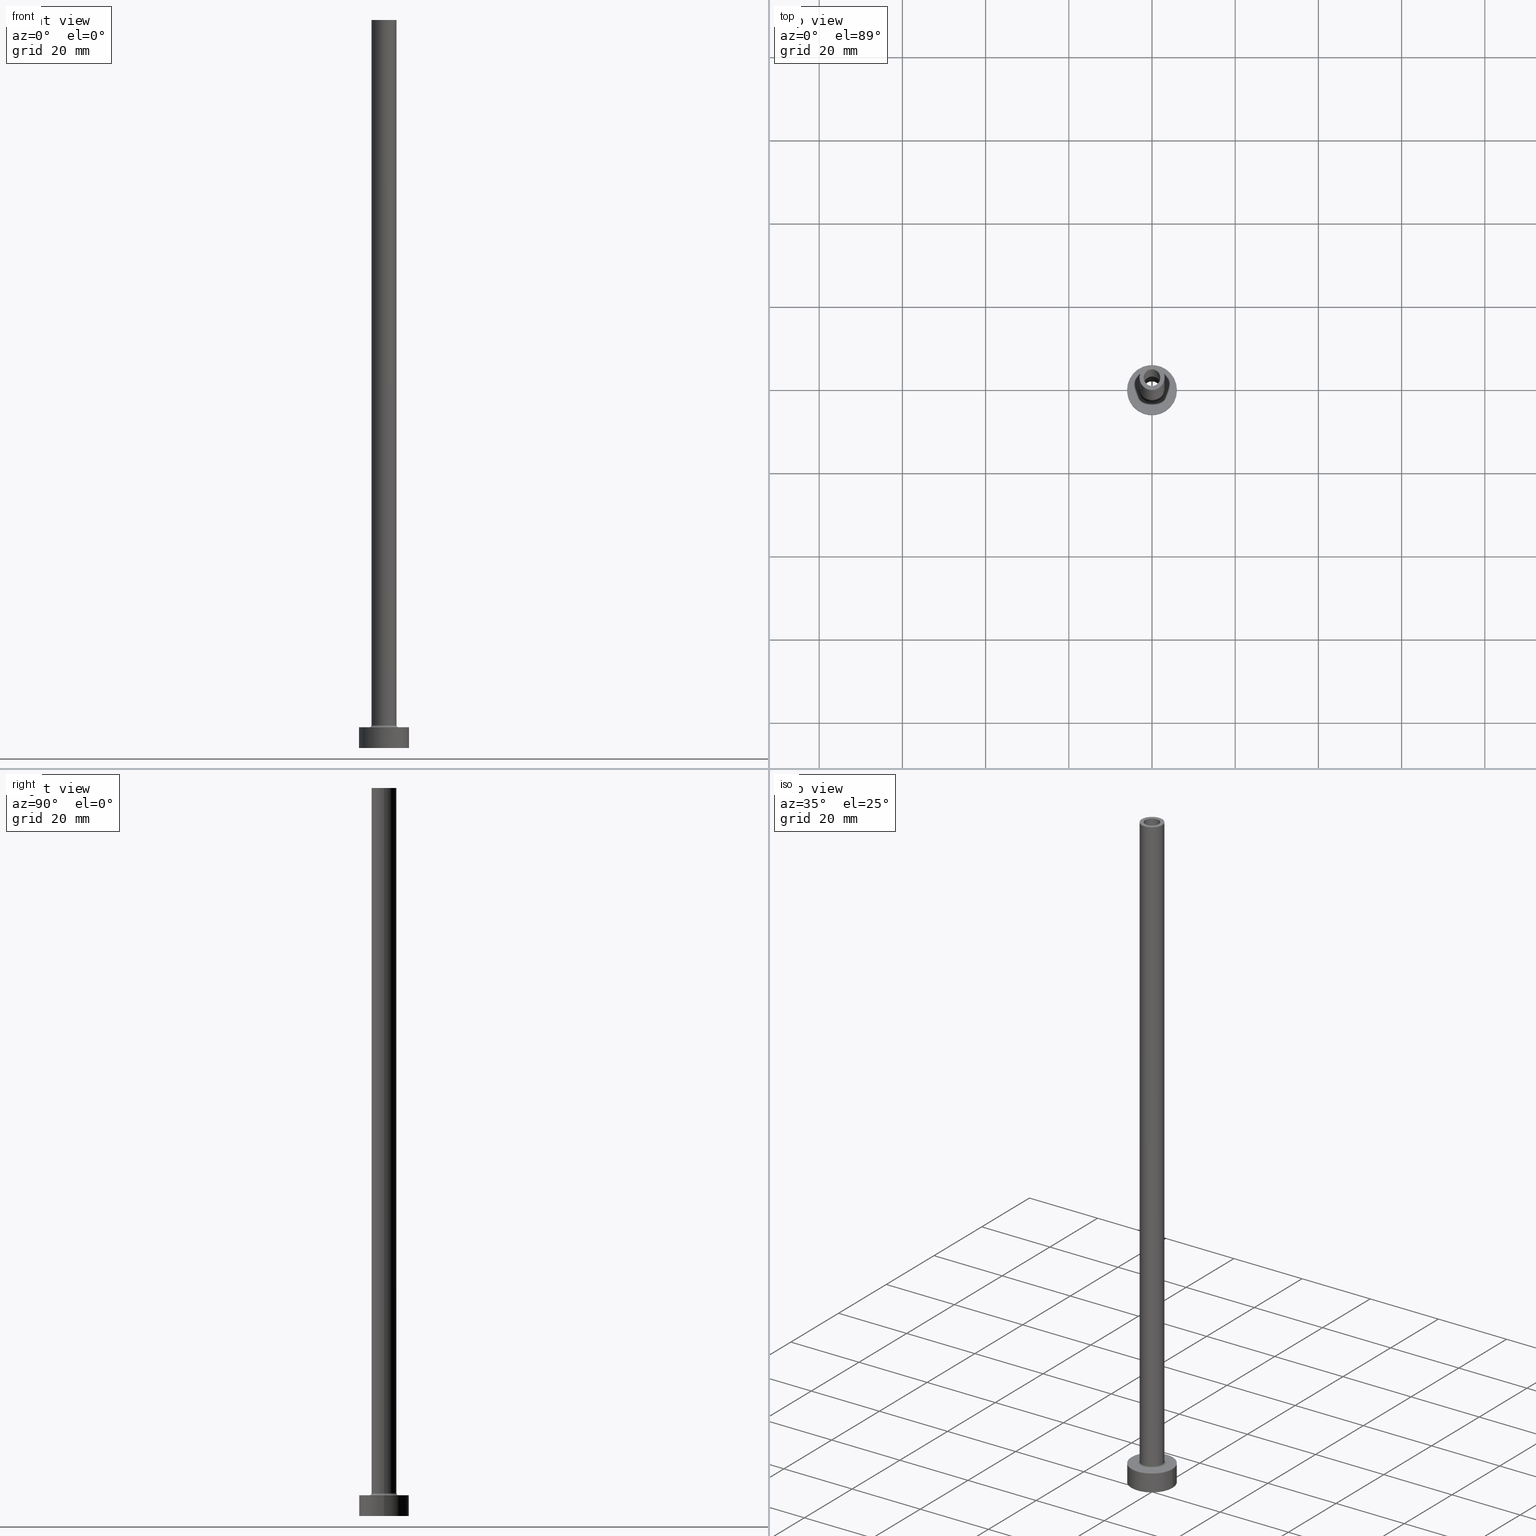
[diagram: canonical four-view strip — front | top / right | iso, engineering-drawing reading convention]
A machine part, canonical four-view strip (front | top / right | iso — engineering-drawing reading convention). The complete STEP part file that produces these views, byte-faithful:
ISO-10303-21;
HEADER;
FILE_DESCRIPTION (( 'STEP AP203' ),
    '1' );
FILE_NAME ('c520.STEP',
    '2023-02-13T11:08:52',
    ( '' ),
    ( '' ),
    'SwSTEP 2.0',
    'SolidWorks 2019',
    '' );
FILE_SCHEMA (( 'CONFIG_CONTROL_DESIGN' ));
ENDSEC;

DATA;
#1 = DIRECTION ( 'NONE',  ( 0.000000000000000000, 0.000000000000000000, 1.000000000000000000 ) ) ;
#2 = AXIS2_PLACEMENT_3D ( 'NONE', #151, #404, #79 ) ;
#3 = AXIS2_PLACEMENT_3D ( 'NONE', #165, #229, #452 ) ;
#4 = CC_DESIGN_PERSON_AND_ORGANIZATION_ASSIGNMENT ( #111, #215, ( #196 ) ) ;
#5 = APPLICATION_PROTOCOL_DEFINITION ( 'international standard', 'config_control_design', 1994, #100 ) ;
#6 = CIRCLE ( 'NONE', #447, 6.000000000000000888 ) ;
#7 = CARTESIAN_POINT ( 'NONE',  ( -3.000000000000000444, 0.000000000000000000, 5.500000000000005329 ) ) ;
#8 = DIRECTION ( 'NONE',  ( 1.000000000000000000, 0.000000000000000000, 0.000000000000000000 ) ) ;
#9 = CARTESIAN_POINT ( 'NONE',  ( 0.000000000000000000, 0.000000000000000000, 5.000000000000000000 ) ) ;
#10 = AXIS2_PLACEMENT_3D ( 'NONE', #263, #193, #195 ) ;
#11 = PRODUCT ( 'c520', 'c520', '', ( #376 ) ) ;
#12 = DIRECTION ( 'NONE',  ( -0.000000000000000000, -0.000000000000000000, -1.000000000000000000 ) ) ;
#13 = ORIENTED_EDGE ( 'NONE', *, *, #245, .F. ) ;
#14 = DIRECTION ( 'NONE',  ( 0.000000000000000000, 0.000000000000000000, 1.000000000000000000 ) ) ;
#15 = CARTESIAN_POINT ( 'NONE',  ( 6.000000000000000888, 7.347880794884120722E-16, 5.000000000000000000 ) ) ;
#16 = CC_DESIGN_APPROVAL ( #311, ( #146 ) ) ;
#17 = CARTESIAN_POINT ( 'NONE',  ( 0.000000000000000000, 0.000000000000000000, 5.000000000000000000 ) ) ;
#18 = ORIENTED_EDGE ( 'NONE', *, *, #432, .F. ) ;
#19 = DIRECTION ( 'NONE',  ( -0.000000000000000000, -0.000000000000000000, -1.000000000000000000 ) ) ;
#20 = ADVANCED_FACE ( 'NONE', ( #80 ), #217, .T. ) ;
#21 = DIRECTION ( 'NONE',  ( 1.000000000000000000, 0.000000000000000000, 0.000000000000000000 ) ) ;
#22 = ORIENTED_EDGE ( 'NONE', *, *, #364, .F. ) ;
#23 = CARTESIAN_POINT ( 'NONE',  ( -2.149999999999999911, 0.000000000000000000, 136.0811183182042896 ) ) ;
#24 = CARTESIAN_POINT ( 'NONE',  ( -2.000000000000000000, 0.000000000000000000, 130.0000000000000000 ) ) ;
#25 = AXIS2_PLACEMENT_3D ( 'NONE', #408, #12, #251 ) ;
#26 = VECTOR ( 'NONE', #422, 1000.000000000000000 ) ;
#27 = CYLINDRICAL_SURFACE ( 'NONE', #221, 6.000000000000000888 ) ;
#28 = EDGE_LOOP ( 'NONE', ( #190, #272 ) ) ;
#29 = DIRECTION ( 'NONE',  ( 0.000000000000000000, 0.000000000000000000, 1.000000000000000000 ) ) ;
#30 = AXIS2_PLACEMENT_3D ( 'NONE', #92, #378, #90 ) ;
#31 = ORIENTED_EDGE ( 'NONE', *, *, #407, .F. ) ;
#32 = DIRECTION ( 'NONE',  ( 1.000000000000000000, 0.000000000000000000, 0.000000000000000000 ) ) ;
#33 = PLANE ( 'NONE',  #373 ) ;
#34 = APPROVAL ( #210, 'NEUR�EN�' ) ;
#35 = AXIS2_PLACEMENT_3D ( 'NONE', #58, #304, #158 ) ;
#36 = DATE_AND_TIME ( #248, #205 ) ;
#37 = CARTESIAN_POINT ( 'NONE',  ( 2.149999999999999911, 2.632990618166809235E-16, 0.000000000000000000 ) ) ;
#38 = ORIENTED_EDGE ( 'NONE', *, *, #209, .F. ) ;
#39 = PERSON_AND_ORGANIZATION ( #361, #288 ) ;
#40 = ORIENTED_EDGE ( 'NONE', *, *, #218, .F. ) ;
#41 = DATE_TIME_ROLE ( 'classification_date' ) ;
#42 = CIRCLE ( 'NONE', #102, 2.000000000000000000 ) ;
#43 = CIRCLE ( 'NONE', #30, 3.500000000000000444 ) ;
#44 = DIRECTION ( 'NONE',  ( 1.000000000000000000, 0.000000000000000000, 0.000000000000000000 ) ) ;
#45 = EDGE_CURVE ( 'NONE', #380, #344, #342, .T. ) ;
#46 = VERTEX_POINT ( 'NONE', #117 ) ;
#47 = AXIS2_PLACEMENT_3D ( 'NONE', #414, #403, #8 ) ;
#48 = EDGE_CURVE ( 'NONE', #276, #244, #256, .T. ) ;
#49 = ORIENTED_EDGE ( 'NONE', *, *, #218, .T. ) ;
#50 = EDGE_LOOP ( 'NONE', ( #339, #49 ) ) ;
#51 = APPROVAL_ROLE ( '' ) ;
#52 = VERTEX_POINT ( 'NONE', #300 ) ;
#53 = LINE ( 'NONE', #128, #400 ) ;
#54 = APPROVAL_PERSON_ORGANIZATION ( #143, #203, #51 ) ;
#55 = ORIENTED_EDGE ( 'NONE', *, *, #325, .F. ) ;
#56 = DIRECTION ( 'NONE',  ( 0.000000000000000000, 0.000000000000000000, 1.000000000000000000 ) ) ;
#57 = EDGE_LOOP ( 'NONE', ( #303, #132 ) ) ;
#58 = CARTESIAN_POINT ( 'NONE',  ( 3.500000000000000444, 0.000000000000000000, 5.500000000000005329 ) ) ;
#59 = DIRECTION ( 'NONE',  ( 1.000000000000000000, 0.000000000000000000, 0.000000000000000000 ) ) ;
#60 = EDGE_LOOP ( 'NONE', ( #157, #228, #110, #40 ) ) ;
#61 = LINE ( 'NONE', #23, #459 ) ;
#62 = AXIS2_PLACEMENT_3D ( 'NONE', #383, #270, #124 ) ;
#63 = EDGE_LOOP ( 'NONE', ( #327, #87 ) ) ;
#64 = EDGE_LOOP ( 'NONE', ( #458, #159, #99, #194 ) ) ;
#65 = DIRECTION ( 'NONE',  ( 1.000000000000000000, 0.000000000000000000, 0.000000000000000000 ) ) ;
#66 = UNCERTAINTY_MEASURE_WITH_UNIT (LENGTH_MEASURE( 1.000000000000000082E-05 ), #168, 'distance_accuracy_value', 'NONE');
#67 = EDGE_LOOP ( 'NONE', ( #347, #312 ) ) ;
#68 = PLANE ( 'NONE',  #362 ) ;
#69 = APPROVAL_PERSON_ORGANIZATION ( #75, #34, #154 ) ;
#70 = ADVANCED_FACE ( 'NONE', ( #86 ), #122, .F. ) ;
#71 = CARTESIAN_POINT ( 'NONE',  ( 0.000000000000000000, 0.000000000000000000, 130.0000000000000000 ) ) ;
#72 = APPROVAL_STATUS ( 'not_yet_approved' ) ;
#73 = DIRECTION ( 'NONE',  ( 1.000000000000000000, 0.000000000000000000, -0.000000000000000000 ) ) ;
#74 = APPROVAL_DATE_TIME ( #36, #311 ) ;
#75 = PERSON_AND_ORGANIZATION ( #361, #288 ) ;
#76 = ORIENTED_EDGE ( 'NONE', *, *, #245, .T. ) ;
#77 = APPLICATION_CONTEXT ( 'configuration controlled 3d designs of mechanical parts and assemblies' ) ;
#78 = CALENDAR_DATE ( 2023, 13, 2 ) ;
#79 = DIRECTION ( 'NONE',  ( 1.000000000000000000, 0.000000000000000000, 0.000000000000000000 ) ) ;
#80 = FACE_OUTER_BOUND ( 'NONE', #169, .T. ) ;
#81 = CIRCLE ( 'NONE', #2, 3.000000000000000444 ) ;
#82 = DIRECTION ( 'NONE',  ( 1.000000000000000000, 0.000000000000000000, 0.000000000000000000 ) ) ;
#83 = EDGE_CURVE ( 'NONE', #244, #119, #167, .T. ) ;
#84 = ORIENTED_EDGE ( 'NONE', *, *, #296, .F. ) ;
#85 = FACE_OUTER_BOUND ( 'NONE', #295, .T. ) ;
#86 = FACE_OUTER_BOUND ( 'NONE', #60, .T. ) ;
#87 = ORIENTED_EDGE ( 'NONE', *, *, #232, .T. ) ;
#88 = DIRECTION ( 'NONE',  ( 0.000000000000000000, 0.000000000000000000, 1.000000000000000000 ) ) ;
#89 = AXIS2_PLACEMENT_3D ( 'NONE', #372, #14, #449 ) ;
#90 = DIRECTION ( 'NONE',  ( 1.000000000000000000, 0.000000000000000000, 0.000000000000000000 ) ) ;
#91 = CARTESIAN_POINT ( 'NONE',  ( 0.000000000000000000, 0.000000000000000000, 175.0000000000000284 ) ) ;
#92 = CARTESIAN_POINT ( 'NONE',  ( 0.000000000000000000, 0.000000000000000000, 5.000000000000000000 ) ) ;
#93 = FACE_OUTER_BOUND ( 'NONE', #365, .T. ) ;
#94 = ORIENTED_EDGE ( 'NONE', *, *, #461, .F. ) ;
#95 = ADVANCED_FACE ( 'NONE', ( #225 ), #341, .F. ) ;
#96 = DIRECTION ( 'NONE',  ( 0.000000000000000000, 0.000000000000000000, 1.000000000000000000 ) ) ;
#97 = VECTOR ( 'NONE', #460, 1000.000000000000000 ) ;
#98 = EDGE_CURVE ( 'NONE', #441, #123, #271, .T. ) ;
#99 = ORIENTED_EDGE ( 'NONE', *, *, #83, .T. ) ;
#100 = APPLICATION_CONTEXT ( 'configuration controlled 3d designs of mechanical parts and assemblies' ) ;
#101 = EDGE_CURVE ( 'NONE', #324, #269, #285, .T. ) ;
#102 = AXIS2_PLACEMENT_3D ( 'NONE', #71, #1, #174 ) ;
#103 = DIRECTION ( 'NONE',  ( 0.000000000000000000, 0.000000000000000000, -1.000000000000000000 ) ) ;
#104 = FACE_OUTER_BOUND ( 'NONE', #377, .T. ) ;
#105 = APPROVAL_ROLE ( '' ) ;
#106 = EDGE_CURVE ( 'NONE', #133, #416, #6, .T. ) ;
#107 = DIRECTION ( 'NONE',  ( 1.000000000000000000, 0.000000000000000000, 0.000000000000000000 ) ) ;
#108 = CC_DESIGN_DATE_AND_TIME_ASSIGNMENT ( #284, #398, ( #196 ) ) ;
#109 = CC_DESIGN_APPROVAL ( #34, ( #196 ) ) ;
#110 = ORIENTED_EDGE ( 'NONE', *, *, #364, .T. ) ;
#111 = PERSON_AND_ORGANIZATION ( #361, #288 ) ;
#112 = DIRECTION ( 'NONE',  ( 0.000000000000000000, 0.000000000000000000, 1.000000000000000000 ) ) ;
#113 = PERSON_AND_ORGANIZATION_ROLE ( 'design_supplier' ) ;
#114 = CLOSED_SHELL ( 'NONE', ( #115, #183, #253, #171, #20, #177, #156, #428, #189, #150, #70, #282, #348, #95 ) ) ;
#115 = ADVANCED_FACE ( 'NONE', ( #164 ), #125, .F. ) ;
#116 = CARTESIAN_POINT ( 'NONE',  ( 0.000000000000000000, 0.000000000000000000, 5.000000000000000000 ) ) ;
#117 = CARTESIAN_POINT ( 'NONE',  ( -2.149999999999999911, 0.000000000000000000, 130.0000000000000000 ) ) ;
#118 = CIRCLE ( 'NONE', #385, 0.4999999999999995559 ) ;
#119 = VERTEX_POINT ( 'NONE', #240 ) ;
#120 = DIRECTION ( 'NONE',  ( 1.000000000000000000, 0.000000000000000000, 0.000000000000000000 ) ) ;
#121 = CARTESIAN_POINT ( 'NONE',  ( 0.000000000000000000, 0.000000000000000000, 130.0000000000000000 ) ) ;
#122 = TOROIDAL_SURFACE ( 'NONE', #149, 3.500000000000000444, 0.5000000000000000000 ) ;
#123 = VERTEX_POINT ( 'NONE', #280 ) ;
#124 = DIRECTION ( 'NONE',  ( -1.000000000000000000, 0.000000000000000000, 0.000000000000000000 ) ) ;
#125 = CYLINDRICAL_SURFACE ( 'NONE', #358, 2.000000000000000000 ) ;
#126 = EDGE_CURVE ( 'NONE', #52, #201, #396, .T. ) ;
#127 = AXIS2_PLACEMENT_3D ( 'NONE', #187, #445, #32 ) ;
#128 = CARTESIAN_POINT ( 'NONE',  ( -6.000000000000000888, 0.000000000000000000, 5.000000000000000000 ) ) ;
#129 = ORIENTED_EDGE ( 'NONE', *, *, #264, .F. ) ;
#130 = FACE_BOUND ( 'NONE', #67, .T. ) ;
#131 = DIRECTION ( 'NONE',  ( -1.000000000000000000, 0.000000000000000000, 0.000000000000000000 ) ) ;
#132 = ORIENTED_EDGE ( 'NONE', *, *, #370, .T. ) ;
#133 = VERTEX_POINT ( 'NONE', #277 ) ;
#134 = AXIS2_PLACEMENT_3D ( 'NONE', #435, #216, #180 ) ;
#135 = AXIS2_PLACEMENT_3D ( 'NONE', #267, #56, #297 ) ;
#136 = DIRECTION ( 'NONE',  ( 0.000000000000000000, 0.000000000000000000, -1.000000000000000000 ) ) ;
#137 = CARTESIAN_POINT ( 'NONE',  ( 0.000000000000000000, 0.000000000000000000, 0.000000000000000000 ) ) ;
#138 = CARTESIAN_POINT ( 'NONE',  ( 0.000000000000000000, 0.000000000000000000, 175.0000000000000284 ) ) ;
#139 = EDGE_CURVE ( 'NONE', #269, #324, #42, .T. ) ;
#140 = DIRECTION ( 'NONE',  ( 0.000000000000000000, 0.000000000000000000, 1.000000000000000000 ) ) ;
#141 = CARTESIAN_POINT ( 'NONE',  ( 0.000000000000000000, 0.000000000000000000, 5.000000000000000000 ) ) ;
#142 = DIRECTION ( 'NONE',  ( 0.000000000000000000, 0.000000000000000000, 1.000000000000000000 ) ) ;
#143 = PERSON_AND_ORGANIZATION ( #361, #288 ) ;
#144 = APPLICATION_PROTOCOL_DEFINITION ( 'international standard', 'config_control_design', 1994, #77 ) ;
#145 = DIRECTION ( 'NONE',  ( -1.000000000000000000, 0.000000000000000000, 0.000000000000000000 ) ) ;
#146 = PRODUCT_DEFINITION_FORMATION_WITH_SPECIFIED_SOURCE ( 'LIBOVOLN�', '', #11, .NOT_KNOWN. ) ;
#147 = CARTESIAN_POINT ( 'NONE',  ( 2.000000000000000000, 2.449293598294706414E-16, 175.0000000000000284 ) ) ;
#148 = PERSON_AND_ORGANIZATION ( #361, #288 ) ;
#149 = AXIS2_PLACEMENT_3D ( 'NONE', #207, #142, #319 ) ;
#150 = ADVANCED_FACE ( 'NONE', ( #243, #431 ), #68, .T. ) ;
#151 = CARTESIAN_POINT ( 'NONE',  ( 0.000000000000000000, 0.000000000000000000, 5.500000000000005329 ) ) ;
#152 = AXIS2_PLACEMENT_3D ( 'NONE', #121, #88, #166 ) ;
#153 = ORIENTED_EDGE ( 'NONE', *, *, #432, .T. ) ;
#154 = APPROVAL_ROLE ( '' ) ;
#155 = CARTESIAN_POINT ( 'NONE',  ( -2.000000000000000000, 0.000000000000000000, 175.0000000000000284 ) ) ;
#156 = ADVANCED_FACE ( 'NONE', ( #208, #391 ), #33, .T. ) ;
#157 = ORIENTED_EDGE ( 'NONE', *, *, #223, .F. ) ;
#158 = DIRECTION ( 'NONE',  ( 0.000000000000000000, 0.000000000000000000, -1.000000000000000000 ) ) ;
#159 = ORIENTED_EDGE ( 'NONE', *, *, #48, .T. ) ;
#160 = LOCAL_TIME ( 12, 8, 52.00000000000000000, #410 ) ;
#161 = PLANE ( 'NONE',  #89 ) ;
#162 = ORIENTED_EDGE ( 'NONE', *, *, #420, .T. ) ;
#163 = LINE ( 'NONE', #15, #197 ) ;
#164 = FACE_OUTER_BOUND ( 'NONE', #455, .T. ) ;
#165 = CARTESIAN_POINT ( 'NONE',  ( 0.000000000000000000, 0.000000000000000000, 5.500000000000005329 ) ) ;
#166 = DIRECTION ( 'NONE',  ( 1.000000000000000000, 0.000000000000000000, 0.000000000000000000 ) ) ;
#167 = CIRCLE ( 'NONE', #389, 2.149999999999999911 ) ;
#168 =( LENGTH_UNIT ( ) NAMED_UNIT ( * ) SI_UNIT ( .MILLI., .METRE. ) );
#169 = EDGE_LOOP ( 'NONE', ( #192, #198, #153, #129 ) ) ;
#170 = CIRCLE ( 'NONE', #188, 2.000000000000000000 ) ;
#171 = ADVANCED_FACE ( 'NONE', ( #318 ), #388, .T. ) ;
#172 = DIRECTION ( 'NONE',  ( -0.000000000000000000, -0.000000000000000000, -1.000000000000000000 ) ) ;
#173 = DIRECTION ( 'NONE',  ( 0.000000000000000000, 0.000000000000000000, -1.000000000000000000 ) ) ;
#174 = DIRECTION ( 'NONE',  ( 1.000000000000000000, 0.000000000000000000, 0.000000000000000000 ) ) ;
#175 = CIRCLE ( 'NONE', #298, 6.000000000000000888 ) ;
#176 = CIRCLE ( 'NONE', #3, 3.000000000000000444 ) ;
#177 = ADVANCED_FACE ( 'NONE', ( #393 ), #27, .T. ) ;
#178 = VERTEX_POINT ( 'NONE', #211 ) ;
#179 = SECURITY_CLASSIFICATION_LEVEL ( 'unclassified' ) ;
#180 = DIRECTION ( 'NONE',  ( 1.000000000000000000, 0.000000000000000000, 0.000000000000000000 ) ) ;
#181 = EDGE_LOOP ( 'NONE', ( #371, #199 ) ) ;
#182 = CARTESIAN_POINT ( 'NONE',  ( -3.500000000000000444, 4.286263797015737088E-16, 5.000000000000002665 ) ) ;
#183 = ADVANCED_FACE ( 'NONE', ( #353 ), #430, .F. ) ;
#184 = EDGE_LOOP ( 'NONE', ( #84, #366 ) ) ;
#185 = ORIENTED_EDGE ( 'NONE', *, *, #397, .T. ) ;
#186 = ORIENTED_EDGE ( 'NONE', *, *, #98, .T. ) ;
#187 = CARTESIAN_POINT ( 'NONE',  ( 0.000000000000000000, 0.000000000000000000, 0.000000000000000000 ) ) ;
#188 = AXIS2_PLACEMENT_3D ( 'NONE', #340, #334, #417 ) ;
#189 = ADVANCED_FACE ( 'NONE', ( #104 ), #424, .T. ) ;
#190 = ORIENTED_EDGE ( 'NONE', *, *, #399, .F. ) ;
#191 = CARTESIAN_POINT ( 'NONE',  ( 0.000000000000000000, 0.000000000000000000, 130.0000000000000000 ) ) ;
#192 = ORIENTED_EDGE ( 'NONE', *, *, #232, .F. ) ;
#193 = DIRECTION ( 'NONE',  ( -0.000000000000000000, -0.000000000000000000, -1.000000000000000000 ) ) ;
#194 = ORIENTED_EDGE ( 'NONE', *, *, #343, .F. ) ;
#195 = DIRECTION ( 'NONE',  ( 1.000000000000000000, 0.000000000000000000, 0.000000000000000000 ) ) ;
#196 = PRODUCT_DEFINITION ( 'NEZN�M�', '', #146, #309 ) ;
#197 = VECTOR ( 'NONE', #332, 1000.000000000000000 ) ;
#198 = ORIENTED_EDGE ( 'NONE', *, *, #325, .T. ) ;
#199 = ORIENTED_EDGE ( 'NONE', *, *, #83, .F. ) ;
#200 = CALENDAR_DATE ( 2023, 13, 2 ) ;
#201 = VERTEX_POINT ( 'NONE', #7 ) ;
#202 =( NAMED_UNIT ( * ) SI_UNIT ( $, .STERADIAN. ) SOLID_ANGLE_UNIT ( ) );
#203 = APPROVAL ( #72, 'NEUR�EN�' ) ;
#204 = VERTEX_POINT ( 'NONE', #182 ) ;
#205 = LOCAL_TIME ( 12, 8, 52.00000000000000000, #247 ) ;
#206 = DIRECTION ( 'NONE',  ( -1.000000000000000000, 0.000000000000000000, 0.000000000000000000 ) ) ;
#207 = CARTESIAN_POINT ( 'NONE',  ( 0.000000000000000000, 0.000000000000000000, 5.500000000000005329 ) ) ;
#208 = FACE_BOUND ( 'NONE', #50, .T. ) ;
#209 = EDGE_CURVE ( 'NONE', #201, #123, #81, .T. ) ;
#210 = APPROVAL_STATUS ( 'not_yet_approved' ) ;
#211 = CARTESIAN_POINT ( 'NONE',  ( 3.500000000000000444, 0.000000000000000000, 5.000000000000002665 ) ) ;
#212 = PERSON_AND_ORGANIZATION_ROLE ( 'design_owner' ) ;
#213 = CIRCLE ( 'NONE', #134, 2.000000000000000000 ) ;
#214 = VECTOR ( 'NONE', #103, 1000.000000000000000 ) ;
#215 = PERSON_AND_ORGANIZATION_ROLE ( 'creator' ) ;
#216 = DIRECTION ( 'NONE',  ( 0.000000000000000000, 0.000000000000000000, 1.000000000000000000 ) ) ;
#217 = CYLINDRICAL_SURFACE ( 'NONE', #302, 6.000000000000000888 ) ;
#218 = EDGE_CURVE ( 'NONE', #204, #178, #260, .T. ) ;
#219 = DATE_AND_TIME ( #78, #275 ) ;
#220 = DIRECTION ( 'NONE',  ( 0.000000000000000000, 0.000000000000000000, 1.000000000000000000 ) ) ;
#221 = AXIS2_PLACEMENT_3D ( 'NONE', #141, #172, #206 ) ;
#222 = SECURITY_CLASSIFICATION ( '', '', #179 ) ;
#223 = EDGE_CURVE ( 'NONE', #201, #204, #118, .T. ) ;
#224 = PLANE ( 'NONE',  #261 ) ;
#225 = FACE_OUTER_BOUND ( 'NONE', #390, .T. ) ;
#226 = PRODUCT_RELATED_PRODUCT_CATEGORY ( 'detail', '', ( #11 ) ) ;
#227 = CARTESIAN_POINT ( 'NONE',  ( 0.000000000000000000, 0.000000000000000000, 0.000000000000000000 ) ) ;
#228 = ORIENTED_EDGE ( 'NONE', *, *, #338, .F. ) ;
#229 = DIRECTION ( 'NONE',  ( 0.000000000000000000, 0.000000000000000000, 1.000000000000000000 ) ) ;
#230 = AXIS2_PLACEMENT_3D ( 'NONE', #138, #346, #279 ) ;
#231 = CARTESIAN_POINT ( 'NONE',  ( -6.000000000000000888, 0.000000000000000000, 0.000000000000000000 ) ) ;
#232 = EDGE_CURVE ( 'NONE', #416, #133, #175, .T. ) ;
#233 = ORIENTED_EDGE ( 'NONE', *, *, #399, .T. ) ;
#234 = CARTESIAN_POINT ( 'NONE',  ( 2.000000000000000000, 2.449293598294706414E-16, 175.0000000000000284 ) ) ;
#235 = CYLINDRICAL_SURFACE ( 'NONE', #62, 2.149999999999999911 ) ;
#236 = CARTESIAN_POINT ( 'NONE',  ( 0.000000000000000000, 0.000000000000000000, 130.0000000000000000 ) ) ;
#237 = TOROIDAL_SURFACE ( 'NONE', #425, 3.500000000000000444, 0.5000000000000000000 ) ;
#238 = CC_DESIGN_APPROVAL ( #203, ( #222 ) ) ;
#239 = ORIENTED_EDGE ( 'NONE', *, *, #101, .F. ) ;
#240 = CARTESIAN_POINT ( 'NONE',  ( -2.149999999999999911, 0.000000000000000000, 0.000000000000000000 ) ) ;
#241 = DATE_AND_TIME ( #200, #160 ) ;
#242 = VERTEX_POINT ( 'NONE', #155 ) ;
#243 = FACE_BOUND ( 'NONE', #28, .T. ) ;
#244 = VERTEX_POINT ( 'NONE', #37 ) ;
#245 = EDGE_CURVE ( 'NONE', #415, #269, #255, .T. ) ;
#246 = CIRCLE ( 'NONE', #337, 2.149999999999999911 ) ;
#247 = COORDINATED_UNIVERSAL_TIME_OFFSET ( 1, 0, .AHEAD. ) ;
#248 = CALENDAR_DATE ( 2023, 13, 2 ) ;
#249 = APPROVAL_DATE_TIME ( #354, #34 ) ;
#250 = MANIFOLD_SOLID_BREP ( 'Odebrat vysunut�m4', #114 ) ;
#251 = DIRECTION ( 'NONE',  ( -1.000000000000000000, 0.000000000000000000, 0.000000000000000000 ) ) ;
#252 = CIRCLE ( 'NONE', #135, 3.000000000000000444 ) ;
#253 = ADVANCED_FACE ( 'NONE', ( #292 ), #237, .F. ) ;
#254 = DIRECTION ( 'NONE',  ( -1.000000000000000000, 0.000000000000000000, 0.000000000000000000 ) ) ;
#255 = LINE ( 'NONE', #147, #440 ) ;
#256 = LINE ( 'NONE', #405, #293 ) ;
#257 = PERSON_AND_ORGANIZATION_ROLE ( 'classification_officer' ) ;
#258 = EDGE_CURVE ( 'NONE', #415, #242, #213, .T. ) ;
#259 = DIRECTION ( 'NONE',  ( 1.224646799147353207E-16, 1.000000000000000000, -0.000000000000000000 ) ) ;
#260 = CIRCLE ( 'NONE', #321, 3.500000000000000444 ) ;
#261 = AXIS2_PLACEMENT_3D ( 'NONE', #308, #368, #456 ) ;
#262 = ORIENTED_EDGE ( 'NONE', *, *, #370, .F. ) ;
#263 = CARTESIAN_POINT ( 'NONE',  ( 0.000000000000000000, 0.000000000000000000, 0.000000000000000000 ) ) ;
#264 = EDGE_CURVE ( 'NONE', #133, #380, #53, .T. ) ;
#265 = DIRECTION ( 'NONE',  ( 0.000000000000000000, 0.000000000000000000, -1.000000000000000000 ) ) ;
#266 = EDGE_LOOP ( 'NONE', ( #38, #409, #31, #22 ) ) ;
#267 = CARTESIAN_POINT ( 'NONE',  ( 0.000000000000000000, 0.000000000000000000, 175.0000000000000284 ) ) ;
#268 = CC_DESIGN_PERSON_AND_ORGANIZATION_ASSIGNMENT ( #329, #257, ( #222 ) ) ;
#269 = VERTEX_POINT ( 'NONE', #381 ) ;
#270 = DIRECTION ( 'NONE',  ( 0.000000000000000000, 0.000000000000000000, -1.000000000000000000 ) ) ;
#271 = LINE ( 'NONE', #450, #26 ) ;
#272 = ORIENTED_EDGE ( 'NONE', *, *, #258, .F. ) ;
#273 = CARTESIAN_POINT ( 'NONE',  ( -2.000000000000000000, 0.000000000000000000, 175.0000000000000284 ) ) ;
#274 = CARTESIAN_POINT ( 'NONE',  ( 0.000000000000000000, 0.000000000000000000, 136.0811183182042896 ) ) ;
#275 = LOCAL_TIME ( 12, 8, 52.00000000000000000, #406 ) ;
#276 = VERTEX_POINT ( 'NONE', #301 ) ;
#277 = CARTESIAN_POINT ( 'NONE',  ( -6.000000000000000888, 0.000000000000000000, 5.000000000000000000 ) ) ;
#278 = DIRECTION ( 'NONE',  ( 0.000000000000000000, 0.000000000000000000, 1.000000000000000000 ) ) ;
#279 = DIRECTION ( 'NONE',  ( -1.000000000000000000, 0.000000000000000000, 0.000000000000000000 ) ) ;
#280 = CARTESIAN_POINT ( 'NONE',  ( 3.000000000000000444, 3.673940397442060361E-16, 5.500000000000005329 ) ) ;
#281 = COORDINATED_UNIVERSAL_TIME_OFFSET ( 1, 0, .AHEAD. ) ;
#282 = ADVANCED_FACE ( 'NONE', ( #93 ), #235, .F. ) ;
#283 = CARTESIAN_POINT ( 'NONE',  ( 0.000000000000000000, 0.000000000000000000, 5.000000000000000000 ) ) ;
#284 = DATE_AND_TIME ( #438, #443 ) ;
#285 = CIRCLE ( 'NONE', #413, 2.000000000000000000 ) ;
#286 = DIRECTION ( 'NONE',  ( 0.000000000000000000, 0.000000000000000000, -1.000000000000000000 ) ) ;
#287 = ORIENTED_EDGE ( 'NONE', *, *, #209, .T. ) ;
#288 = ORGANIZATION ( 'NEUR�EN�', 'NEUR�EN�', '' ) ;
#289 = CC_DESIGN_DATE_AND_TIME_ASSIGNMENT ( #219, #41, ( #222 ) ) ;
#290 = ORIENTED_EDGE ( 'NONE', *, *, #126, .T. ) ;
#291 = CALENDAR_DATE ( 2023, 13, 2 ) ;
#292 = FACE_OUTER_BOUND ( 'NONE', #266, .T. ) ;
#293 = VECTOR ( 'NONE', #265, 1000.000000000000000 ) ;
#294 = ORIENTED_EDGE ( 'NONE', *, *, #264, .T. ) ;
#295 = EDGE_LOOP ( 'NONE', ( #392, #18 ) ) ;
#296 = EDGE_CURVE ( 'NONE', #46, #276, #246, .T. ) ;
#297 = DIRECTION ( 'NONE',  ( 1.000000000000000000, 0.000000000000000000, 0.000000000000000000 ) ) ;
#298 = AXIS2_PLACEMENT_3D ( 'NONE', #9, #112, #107 ) ;
#299 = LOCAL_TIME ( 12, 8, 52.00000000000000000, #281 ) ;
#300 = CARTESIAN_POINT ( 'NONE',  ( -3.000000000000000444, 0.000000000000000000, 175.0000000000000284 ) ) ;
#301 = CARTESIAN_POINT ( 'NONE',  ( 2.149999999999999911, 2.632990618166809235E-16, 130.0000000000000000 ) ) ;
#302 = AXIS2_PLACEMENT_3D ( 'NONE', #439, #333, #254 ) ;
#303 = ORIENTED_EDGE ( 'NONE', *, *, #454, .T. ) ;
#304 = DIRECTION ( 'NONE',  ( 0.000000000000000000, -1.000000000000000000, 0.000000000000000000 ) ) ;
#305 = ADVANCED_BREP_SHAPE_REPRESENTATION ( 'c520', ( #250, #418 ), #453 ) ;
#306 = CARTESIAN_POINT ( 'NONE',  ( 6.000000000000000888, 7.347880794884120722E-16, 0.000000000000000000 ) ) ;
#307 = CIRCLE ( 'NONE', #127, 6.000000000000000888 ) ;
#308 = CARTESIAN_POINT ( 'NONE',  ( 0.000000000000000000, 0.000000000000000000, 0.000000000000000000 ) ) ;
#309 = DESIGN_CONTEXT ( 'detailed design', #100, 'design' ) ;
#310 = ORIENTED_EDGE ( 'NONE', *, *, #343, .T. ) ;
#311 = APPROVAL ( #356, 'NEUR�EN�' ) ;
#312 = ORIENTED_EDGE ( 'NONE', *, *, #139, .T. ) ;
#313 = LINE ( 'NONE', #273, #214 ) ;
#314 = ORIENTED_EDGE ( 'NONE', *, *, #338, .T. ) ;
#315 = ORIENTED_EDGE ( 'NONE', *, *, #106, .F. ) ;
#316 = CARTESIAN_POINT ( 'NONE',  ( 0.000000000000000000, 0.000000000000000000, 175.0000000000000284 ) ) ;
#317 = CC_DESIGN_PERSON_AND_ORGANIZATION_ASSIGNMENT ( #148, #113, ( #146 ) ) ;
#318 = FACE_OUTER_BOUND ( 'NONE', #426, .T. ) ;
#319 = DIRECTION ( 'NONE',  ( 1.000000000000000000, 0.000000000000000000, 0.000000000000000000 ) ) ;
#320 = PERSON_AND_ORGANIZATION ( #361, #288 ) ;
#321 = AXIS2_PLACEMENT_3D ( 'NONE', #116, #326, #363 ) ;
#322 = CIRCLE ( 'NONE', #152, 2.149999999999999911 ) ;
#323 = DIRECTION ( 'NONE',  ( -1.000000000000000000, 0.000000000000000000, 0.000000000000000000 ) ) ;
#324 = VERTEX_POINT ( 'NONE', #24 ) ;
#325 = EDGE_CURVE ( 'NONE', #416, #344, #163, .T. ) ;
#326 = DIRECTION ( 'NONE',  ( -0.000000000000000000, -0.000000000000000000, -1.000000000000000000 ) ) ;
#327 = ORIENTED_EDGE ( 'NONE', *, *, #106, .T. ) ;
#328 = CIRCLE ( 'NONE', #10, 2.149999999999999911 ) ;
#329 = PERSON_AND_ORGANIZATION ( #361, #288 ) ;
#330 = CC_DESIGN_PERSON_AND_ORGANIZATION_ASSIGNMENT ( #39, #355, ( #146 ) ) ;
#331 = ORIENTED_EDGE ( 'NONE', *, *, #461, .T. ) ;
#332 = DIRECTION ( 'NONE',  ( -0.000000000000000000, -0.000000000000000000, -1.000000000000000000 ) ) ;
#333 = DIRECTION ( 'NONE',  ( -0.000000000000000000, -0.000000000000000000, -1.000000000000000000 ) ) ;
#334 = DIRECTION ( 'NONE',  ( 0.000000000000000000, 0.000000000000000000, 1.000000000000000000 ) ) ;
#335 = AXIS2_PLACEMENT_3D ( 'NONE', #274, #173, #145 ) ;
#336 = DIRECTION ( 'NONE',  ( 1.000000000000000000, 0.000000000000000000, 0.000000000000000000 ) ) ;
#337 = AXIS2_PLACEMENT_3D ( 'NONE', #191, #419, #120 ) ;
#338 = EDGE_CURVE ( 'NONE', #123, #201, #176, .T. ) ;
#339 = ORIENTED_EDGE ( 'NONE', *, *, #407, .T. ) ;
#340 = CARTESIAN_POINT ( 'NONE',  ( 0.000000000000000000, 0.000000000000000000, 175.0000000000000284 ) ) ;
#341 = CYLINDRICAL_SURFACE ( 'NONE', #379, 2.000000000000000000 ) ;
#342 = CIRCLE ( 'NONE', #47, 6.000000000000000888 ) ;
#343 = EDGE_CURVE ( 'NONE', #46, #119, #61, .T. ) ;
#344 = VERTEX_POINT ( 'NONE', #306 ) ;
#345 = FACE_BOUND ( 'NONE', #181, .T. ) ;
#346 = DIRECTION ( 'NONE',  ( -0.000000000000000000, -0.000000000000000000, -1.000000000000000000 ) ) ;
#347 = ORIENTED_EDGE ( 'NONE', *, *, #101, .T. ) ;
#348 = ADVANCED_FACE ( 'NONE', ( #130, #412 ), #161, .F. ) ;
#349 = CIRCLE ( 'NONE', #394, 3.000000000000000444 ) ;
#350 = ORIENTED_EDGE ( 'NONE', *, *, #139, .F. ) ;
#351 = CARTESIAN_POINT ( 'NONE',  ( 0.000000000000000000, 0.000000000000000000, 175.0000000000000284 ) ) ;
#352 = CARTESIAN_POINT ( 'NONE',  ( 3.000000000000000444, 3.673940397442060361E-16, 175.0000000000000284 ) ) ;
#353 = FACE_OUTER_BOUND ( 'NONE', #64, .T. ) ;
#354 = DATE_AND_TIME ( #291, #299 ) ;
#355 = PERSON_AND_ORGANIZATION_ROLE ( 'creator' ) ;
#356 = APPROVAL_STATUS ( 'not_yet_approved' ) ;
#357 = CARTESIAN_POINT ( 'NONE',  ( -3.500000000000000444, 4.286263797015737088E-16, 5.500000000000005329 ) ) ;
#358 = AXIS2_PLACEMENT_3D ( 'NONE', #316, #136, #323 ) ;
#359 = COORDINATED_UNIVERSAL_TIME_OFFSET ( 1, 0, .AHEAD. ) ;
#360 = ORIENTED_EDGE ( 'NONE', *, *, #454, .F. ) ;
#361 = PERSON ( 'NEUR�EN�', 'NEUR�EN�', 'NEUR�EN�', ('NEUR�EN�'), ('NEUR�EN�'), ('NEUR�EN�') ) ;
#362 = AXIS2_PLACEMENT_3D ( 'NONE', #427, #96, #395 ) ;
#363 = DIRECTION ( 'NONE',  ( 1.000000000000000000, 0.000000000000000000, 0.000000000000000000 ) ) ;
#364 = EDGE_CURVE ( 'NONE', #123, #178, #374, .T. ) ;
#365 = EDGE_LOOP ( 'NONE', ( #382, #185, #310, #162 ) ) ;
#366 = ORIENTED_EDGE ( 'NONE', *, *, #397, .F. ) ;
#367 = DIRECTION ( 'NONE',  ( -1.000000000000000000, 1.224646799147354440E-16, 0.000000000000000000 ) ) ;
#368 = DIRECTION ( 'NONE',  ( 0.000000000000000000, 0.000000000000000000, 1.000000000000000000 ) ) ;
#369 = SHAPE_DEFINITION_REPRESENTATION ( #444, #305 ) ;
#370 = EDGE_CURVE ( 'NONE', #441, #52, #252, .T. ) ;
#371 = ORIENTED_EDGE ( 'NONE', *, *, #420, .F. ) ;
#372 = CARTESIAN_POINT ( 'NONE',  ( 0.000000000000000000, 0.000000000000000000, 130.0000000000000000 ) ) ;
#373 = AXIS2_PLACEMENT_3D ( 'NONE', #283, #29, #73 ) ;
#374 = CIRCLE ( 'NONE', #35, 0.5000000000000004441 ) ;
#375 = CC_DESIGN_PERSON_AND_ORGANIZATION_ASSIGNMENT ( #434, #212, ( #11 ) ) ;
#376 = MECHANICAL_CONTEXT ( 'NONE', #77, 'mechanical' ) ;
#377 = EDGE_LOOP ( 'NONE', ( #437, #360, #290, #287 ) ) ;
#378 = DIRECTION ( 'NONE',  ( -0.000000000000000000, -0.000000000000000000, -1.000000000000000000 ) ) ;
#379 = AXIS2_PLACEMENT_3D ( 'NONE', #91, #457, #131 ) ;
#380 = VERTEX_POINT ( 'NONE', #231 ) ;
#381 = CARTESIAN_POINT ( 'NONE',  ( 2.000000000000000000, 2.449293598294706414E-16, 130.0000000000000000 ) ) ;
#382 = ORIENTED_EDGE ( 'NONE', *, *, #48, .F. ) ;
#383 = CARTESIAN_POINT ( 'NONE',  ( 0.000000000000000000, 0.000000000000000000, 136.0811183182042896 ) ) ;
#384 = DIRECTION ( 'NONE',  ( 0.000000000000000000, 0.000000000000000000, 1.000000000000000000 ) ) ;
#385 = AXIS2_PLACEMENT_3D ( 'NONE', #357, #259, #367 ) ;
#386 = ORIENTED_EDGE ( 'NONE', *, *, #258, .T. ) ;
#387 =( NAMED_UNIT ( * ) PLANE_ANGLE_UNIT ( ) SI_UNIT ( $, .RADIAN. ) );
#388 = CYLINDRICAL_SURFACE ( 'NONE', #230, 3.000000000000000444 ) ;
#389 = AXIS2_PLACEMENT_3D ( 'NONE', #227, #433, #59 ) ;
#390 = EDGE_LOOP ( 'NONE', ( #13, #386, #331, #350 ) ) ;
#391 = FACE_OUTER_BOUND ( 'NONE', #63, .T. ) ;
#392 = ORIENTED_EDGE ( 'NONE', *, *, #45, .F. ) ;
#393 = FACE_OUTER_BOUND ( 'NONE', #451, .T. ) ;
#394 = AXIS2_PLACEMENT_3D ( 'NONE', #351, #140, #65 ) ;
#395 = DIRECTION ( 'NONE',  ( 1.000000000000000000, 0.000000000000000000, -0.000000000000000000 ) ) ;
#396 = LINE ( 'NONE', #429, #97 ) ;
#397 = EDGE_CURVE ( 'NONE', #276, #46, #322, .T. ) ;
#398 = DATE_TIME_ROLE ( 'creation_date' ) ;
#399 = EDGE_CURVE ( 'NONE', #242, #415, #170, .T. ) ;
#400 = VECTOR ( 'NONE', #19, 1000.000000000000000 ) ;
#401 = CC_DESIGN_SECURITY_CLASSIFICATION ( #222, ( #146 ) ) ;
#402 = CARTESIAN_POINT ( 'NONE',  ( 0.000000000000000000, 0.000000000000000000, 5.500000000000005329 ) ) ;
#403 = DIRECTION ( 'NONE',  ( 0.000000000000000000, 0.000000000000000000, 1.000000000000000000 ) ) ;
#404 = DIRECTION ( 'NONE',  ( 0.000000000000000000, 0.000000000000000000, 1.000000000000000000 ) ) ;
#405 = CARTESIAN_POINT ( 'NONE',  ( 2.149999999999999911, 2.632990618166809235E-16, 136.0811183182042896 ) ) ;
#406 = COORDINATED_UNIVERSAL_TIME_OFFSET ( 1, 0, .AHEAD. ) ;
#407 = EDGE_CURVE ( 'NONE', #178, #204, #43, .T. ) ;
#408 = CARTESIAN_POINT ( 'NONE',  ( 0.000000000000000000, 0.000000000000000000, 175.0000000000000284 ) ) ;
#409 = ORIENTED_EDGE ( 'NONE', *, *, #223, .T. ) ;
#410 = COORDINATED_UNIVERSAL_TIME_OFFSET ( 1, 0, .AHEAD. ) ;
#411 = APPROVAL_PERSON_ORGANIZATION ( #320, #311, #105 ) ;
#412 = FACE_OUTER_BOUND ( 'NONE', #184, .T. ) ;
#413 = AXIS2_PLACEMENT_3D ( 'NONE', #236, #384, #336 ) ;
#414 = CARTESIAN_POINT ( 'NONE',  ( 0.000000000000000000, 0.000000000000000000, 0.000000000000000000 ) ) ;
#415 = VERTEX_POINT ( 'NONE', #234 ) ;
#416 = VERTEX_POINT ( 'NONE', #421 ) ;
#417 = DIRECTION ( 'NONE',  ( 1.000000000000000000, 0.000000000000000000, 0.000000000000000000 ) ) ;
#418 = AXIS2_PLACEMENT_3D ( 'NONE', #137, #278, #82 ) ;
#419 = DIRECTION ( 'NONE',  ( 0.000000000000000000, 0.000000000000000000, 1.000000000000000000 ) ) ;
#420 = EDGE_CURVE ( 'NONE', #119, #244, #328, .T. ) ;
#421 = CARTESIAN_POINT ( 'NONE',  ( 6.000000000000000888, 7.347880794884120722E-16, 5.000000000000000000 ) ) ;
#422 = DIRECTION ( 'NONE',  ( -0.000000000000000000, -0.000000000000000000, -1.000000000000000000 ) ) ;
#423 = ORIENTED_EDGE ( 'NONE', *, *, #126, .F. ) ;
#424 = CYLINDRICAL_SURFACE ( 'NONE', #25, 3.000000000000000444 ) ;
#425 = AXIS2_PLACEMENT_3D ( 'NONE', #402, #220, #44 ) ;
#426 = EDGE_LOOP ( 'NONE', ( #262, #186, #314, #423 ) ) ;
#427 = CARTESIAN_POINT ( 'NONE',  ( 0.000000000000000000, 0.000000000000000000, 175.0000000000000284 ) ) ;
#428 = ADVANCED_FACE ( 'NONE', ( #345, #85 ), #224, .F. ) ;
#429 = CARTESIAN_POINT ( 'NONE',  ( -3.000000000000000444, 0.000000000000000000, 175.0000000000000284 ) ) ;
#430 = CYLINDRICAL_SURFACE ( 'NONE', #335, 2.149999999999999911 ) ;
#431 = FACE_OUTER_BOUND ( 'NONE', #57, .T. ) ;
#432 = EDGE_CURVE ( 'NONE', #344, #380, #307, .T. ) ;
#433 = DIRECTION ( 'NONE',  ( -0.000000000000000000, -0.000000000000000000, -1.000000000000000000 ) ) ;
#434 = PERSON_AND_ORGANIZATION ( #361, #288 ) ;
#435 = CARTESIAN_POINT ( 'NONE',  ( 0.000000000000000000, 0.000000000000000000, 175.0000000000000284 ) ) ;
#436 = ORIENTED_EDGE ( 'NONE', *, *, #45, .T. ) ;
#437 = ORIENTED_EDGE ( 'NONE', *, *, #98, .F. ) ;
#438 = CALENDAR_DATE ( 2023, 13, 2 ) ;
#439 = CARTESIAN_POINT ( 'NONE',  ( 0.000000000000000000, 0.000000000000000000, 5.000000000000000000 ) ) ;
#440 = VECTOR ( 'NONE', #286, 1000.000000000000000 ) ;
#441 = VERTEX_POINT ( 'NONE', #352 ) ;
#442 = DIRECTION ( 'NONE',  ( 0.000000000000000000, 0.000000000000000000, -1.000000000000000000 ) ) ;
#443 = LOCAL_TIME ( 12, 8, 52.00000000000000000, #359 ) ;
#444 = PRODUCT_DEFINITION_SHAPE ( 'NONE', 'NONE',  #196 ) ;
#445 = DIRECTION ( 'NONE',  ( 0.000000000000000000, 0.000000000000000000, 1.000000000000000000 ) ) ;
#446 = DIRECTION ( 'NONE',  ( 0.000000000000000000, 0.000000000000000000, 1.000000000000000000 ) ) ;
#447 = AXIS2_PLACEMENT_3D ( 'NONE', #17, #446, #21 ) ;
#448 = APPROVAL_DATE_TIME ( #241, #203 ) ;
#449 = DIRECTION ( 'NONE',  ( 1.000000000000000000, 0.000000000000000000, -0.000000000000000000 ) ) ;
#450 = CARTESIAN_POINT ( 'NONE',  ( 3.000000000000000444, 3.673940397442060361E-16, 175.0000000000000284 ) ) ;
#451 = EDGE_LOOP ( 'NONE', ( #55, #315, #294, #436 ) ) ;
#452 = DIRECTION ( 'NONE',  ( 1.000000000000000000, 0.000000000000000000, 0.000000000000000000 ) ) ;
#453 =( GEOMETRIC_REPRESENTATION_CONTEXT ( 3 ) GLOBAL_UNCERTAINTY_ASSIGNED_CONTEXT ( ( #66 ) ) GLOBAL_UNIT_ASSIGNED_CONTEXT ( ( #168, #387, #202 ) ) REPRESENTATION_CONTEXT ( 'NONE', 'WORKASPACE' ) );
#454 = EDGE_CURVE ( 'NONE', #52, #441, #349, .T. ) ;
#455 = EDGE_LOOP ( 'NONE', ( #233, #76, #239, #94 ) ) ;
#456 = DIRECTION ( 'NONE',  ( 1.000000000000000000, 0.000000000000000000, -0.000000000000000000 ) ) ;
#457 = DIRECTION ( 'NONE',  ( 0.000000000000000000, 0.000000000000000000, -1.000000000000000000 ) ) ;
#458 = ORIENTED_EDGE ( 'NONE', *, *, #296, .T. ) ;
#459 = VECTOR ( 'NONE', #442, 1000.000000000000000 ) ;
#460 = DIRECTION ( 'NONE',  ( -0.000000000000000000, -0.000000000000000000, -1.000000000000000000 ) ) ;
#461 = EDGE_CURVE ( 'NONE', #242, #324, #313, .T. ) ;
ENDSEC;
END-ISO-10303-21;
